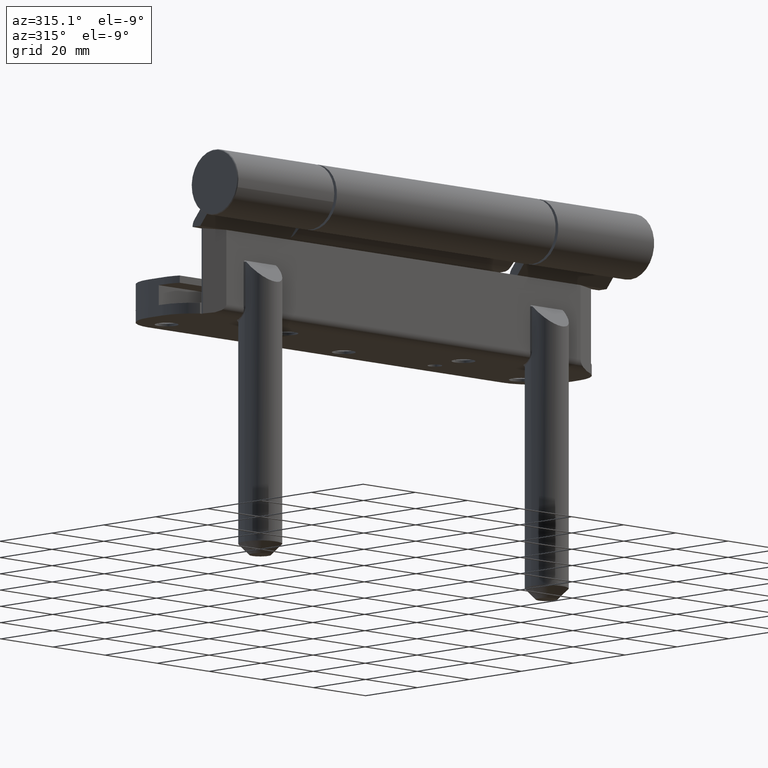
[diagram: clean part render]
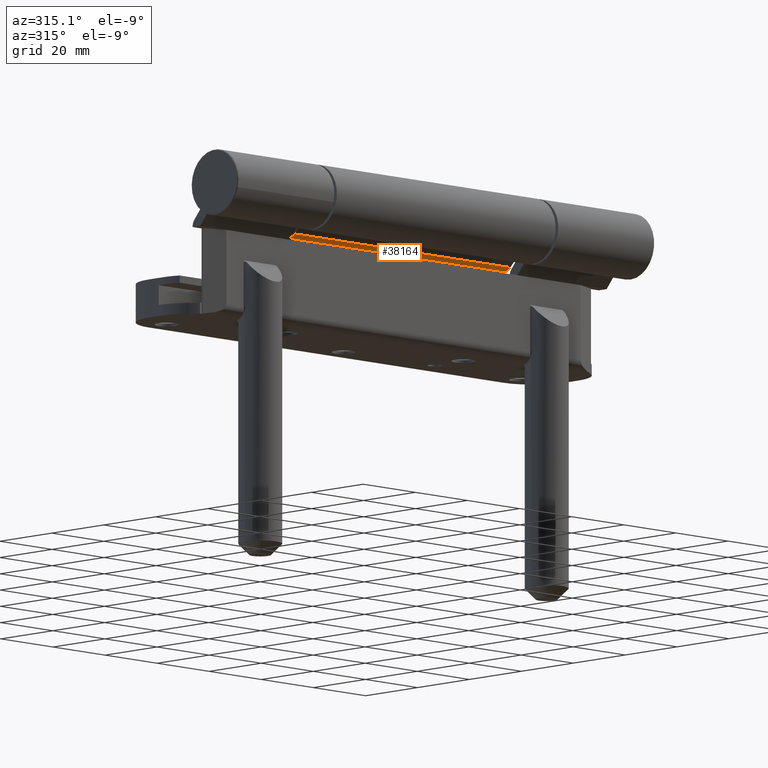
[diagram: same view with one face highlighted and labeled with its STEP entity id]
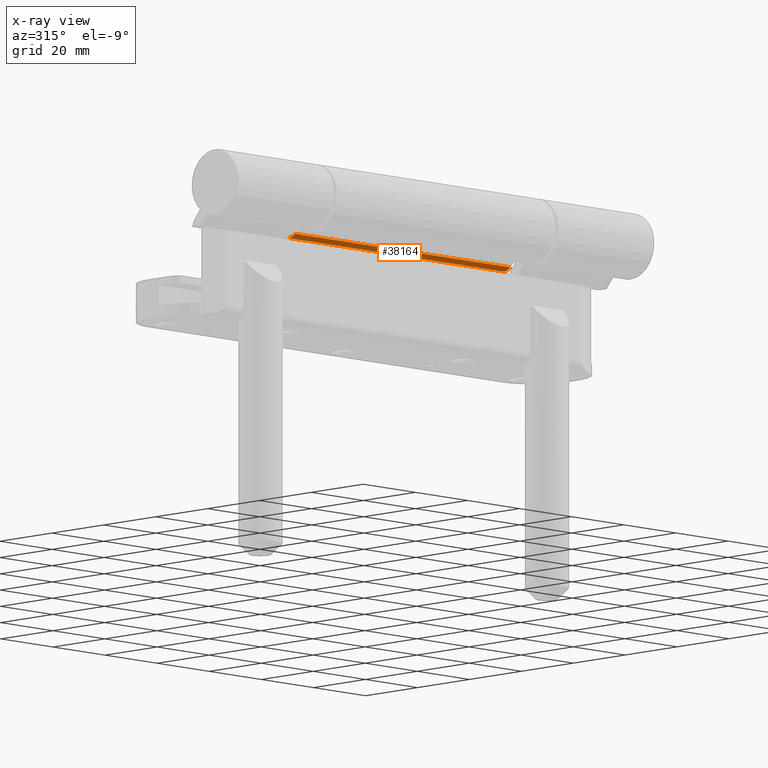
[diagram: x-ray of the same camera — body ghosted, the highlighted face saturated]
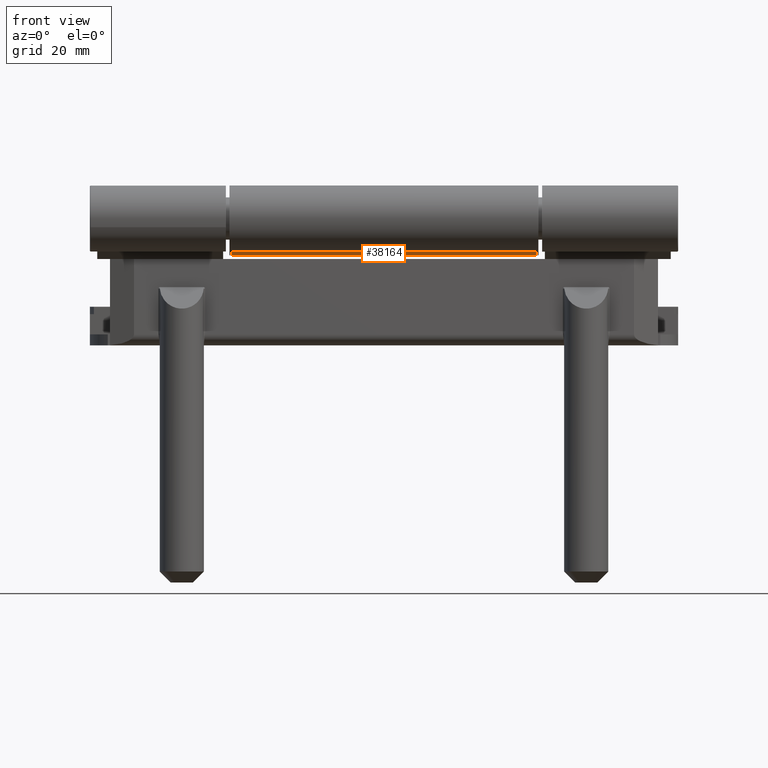
[diagram: same view with one face highlighted and labeled with its STEP entity id]
A machine part, auxiliary view. The second image highlights one B-rep face of the part: STEP entity #38164.
The next image is the same camera in x-ray: the body ghosted, the highlighted face saturated — about 0% of this face is hidden behind the body in this view.
A second angle (front view) of the same face is appended — the face is thin or edge-on in the first view.
In plain terms, the highlighted cylindrical surface (edge-blend (fillet) strip) has radius 3.5 mm, axis along (1, -0, -0).
Its self-contained STEP definition (entity closure, byte-faithful):
#1453 = CARTESIAN_POINT ( 'NONE',  ( -7.847930449377614082, -9.098935908627515445, 41.32576525985344063 ) ) ;
#1541 = EDGE_CURVE ( 'NONE', #54053, #31442, #22414, .T. ) ;
#5930 = DIRECTION ( 'NONE',  ( 3.125451933146358723E-33, -6.224605580259548029E-31, -1.000000000000000000 ) ) ;
#7633 = VECTOR ( 'NONE', #47145, 1000.000000000000000 ) ;
#9613 = CARTESIAN_POINT ( 'NONE',  ( -10.19218558541687791, -10.00000000000000178, 42.00000000000000000 ) ) ;
#11660 = LINE ( 'NONE', #19722, #45096 ) ;
#15575 = DIRECTION ( 'NONE',  ( 3.125451933146358723E-33, -6.224605580259548029E-31, -1.000000000000000000 ) ) ;
#18395 = ORIENTED_EDGE ( 'NONE', *, *, #1541, .T. ) ;
#19722 = CARTESIAN_POINT ( 'NONE',  ( -7.847930449377614082, -9.098935908627515445, 42.00000000000000000 ) ) ;
#22414 = LINE ( 'NONE', #9613, #7633 ) ;
#23299 = CARTESIAN_POINT ( 'NONE',  ( -10.19218558541687791, -10.00000000000000178, -41.40762845308887563 ) ) ;
#24427 = EDGE_CURVE ( 'NONE', #44007, #54053, #50986, .T. ) ;
#25473 = CARTESIAN_POINT ( 'NONE',  ( -9.316147854342661461, -9.999999999999998224, -41.37703654141599685 ) ) ;
#26463 = ORIENTED_EDGE ( 'NONE', *, *, #32283, .F. ) ;
#28413 = FACE_OUTER_BOUND ( 'NONE', #30118, .T. ) ;
#28491 = CARTESIAN_POINT ( 'NONE',  ( -7.847930449377614082, -9.098935908627515445, 41.32576525985344063 ) ) ;
#29347 = EDGE_CURVE ( 'NONE', #31442, #30617, #49218, .T. ) ;
#30118 = EDGE_LOOP ( 'NONE', ( #18395, #37985, #26463, #37337 ) ) ;
#30617 = VERTEX_POINT ( 'NONE', #52301 ) ;
#31442 = VERTEX_POINT ( 'NONE', #23299 ) ;
#31478 = DIRECTION ( 'NONE',  ( -1.000000000000000000, 0.000000000000000000, 0.000000000000000000 ) ) ;
#32283 = EDGE_CURVE ( 'NONE', #44007, #30617, #11660, .T. ) ;
#32643 = CARTESIAN_POINT ( 'NONE',  ( -9.316147854342663237, -9.999999999999998224, 41.37703654141598975 ) ) ;
#33506 = CARTESIAN_POINT ( 'NONE',  ( -10.19218558541687791, -10.00000000000000178, -41.40762845308887563 ) ) ;
#35920 = CYLINDRICAL_SURFACE ( 'NONE', #39210, 3.499999999999999556 ) ;
#37337 = ORIENTED_EDGE ( 'NONE', *, *, #24427, .T. ) ;
#37985 = ORIENTED_EDGE ( 'NONE', *, *, #29347, .T. ) ;
#38164 = ADVANCED_FACE ( 'NONE', ( #28413 ), #35920, .T. ) ;
#38551 = CARTESIAN_POINT ( 'NONE',  ( -10.19218558541687791, -10.00000000000000178, 41.40762845308889695 ) ) ;
#39210 = AXIS2_PLACEMENT_3D ( 'NONE', #40361, #5930, #31478 ) ;
#40361 = CARTESIAN_POINT ( 'NONE',  ( -10.19218558541687791, -6.499999999999999112, 42.00000000000000000 ) ) ;
#42397 = CARTESIAN_POINT ( 'NONE',  ( -7.847930449377614082, -9.098935908627515445, -41.32576525985343352 ) ) ;
#44007 = VERTEX_POINT ( 'NONE', #1453 ) ;
#44888 = CARTESIAN_POINT ( 'NONE',  ( -8.498434996978000200, -9.685694751608920683, 41.34848137921353128 ) ) ;
#45096 = VECTOR ( 'NONE', #15575, 1000.000000000000000 ) ;
#45158 = CARTESIAN_POINT ( 'NONE',  ( -10.19218558541687791, -10.00000000000000178, 41.40762845308889695 ) ) ;
#47145 = DIRECTION ( 'NONE',  ( 3.125451933146358723E-33, -6.224605580259548029E-31, -1.000000000000000000 ) ) ;
#49218 =( BOUNDED_CURVE ( )  B_SPLINE_CURVE ( 3, ( #33506, #25473, #50438, #42397 ),
 .UNSPECIFIED., .F., .F. ) 
 B_SPLINE_CURVE_WITH_KNOTS ( ( 4, 4 ),
 ( 1.570796326794897002, 2.304718473752922048 ),
 .UNSPECIFIED. ) 
 CURVE ( )  GEOMETRIC_REPRESENTATION_ITEM ( )  RATIONAL_B_SPLINE_CURVE ( ( 1.000000000000000000, 0.9556146410588701734, 0.9556146410588701734, 1.000000000000000000 ) ) 
 REPRESENTATION_ITEM ( '' )  );
#50438 = CARTESIAN_POINT ( 'NONE',  ( -8.498434996978000200, -9.685694751608917130, -41.34848137921353839 ) ) ;
#50986 =( BOUNDED_CURVE ( )  B_SPLINE_CURVE ( 3, ( #28491, #44888, #32643, #45158 ),
 .UNSPECIFIED., .F., .T. ) 
 B_SPLINE_CURVE_WITH_KNOTS ( ( 4, 4 ),
 ( 0.8368741798368715124, 1.570796326794896558 ),
 .UNSPECIFIED. ) 
 CURVE ( )  GEOMETRIC_REPRESENTATION_ITEM ( )  RATIONAL_B_SPLINE_CURVE ( ( 1.000000000000000000, 0.9556146410588701734, 0.9556146410588701734, 1.000000000000000000 ) ) 
 REPRESENTATION_ITEM ( '' )  );
#52301 = CARTESIAN_POINT ( 'NONE',  ( -7.847930449377614082, -9.098935908627515445, -41.32576525985343352 ) ) ;
#54053 = VERTEX_POINT ( 'NONE', #38551 ) ;